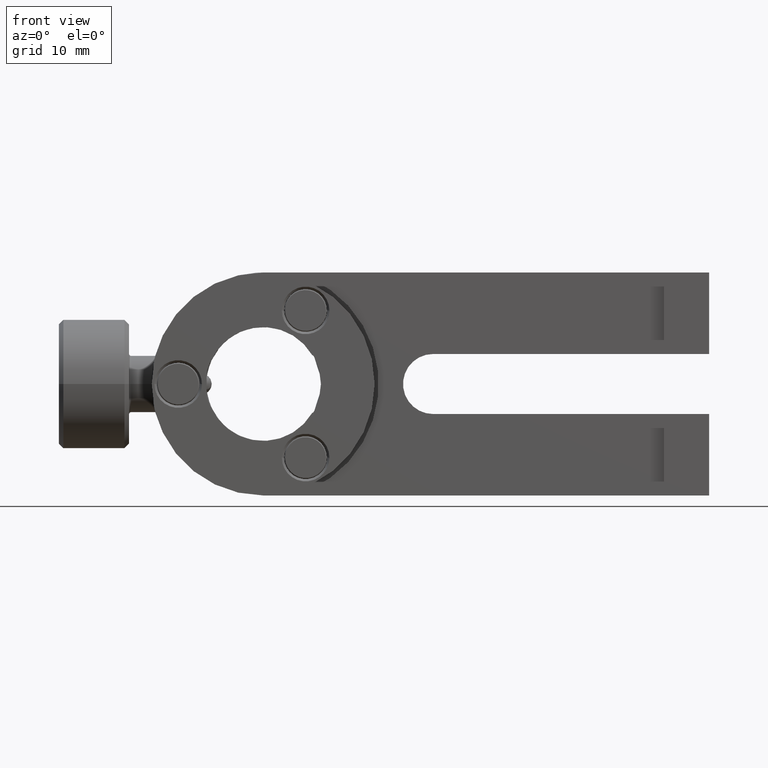
[diagram: clean part render]
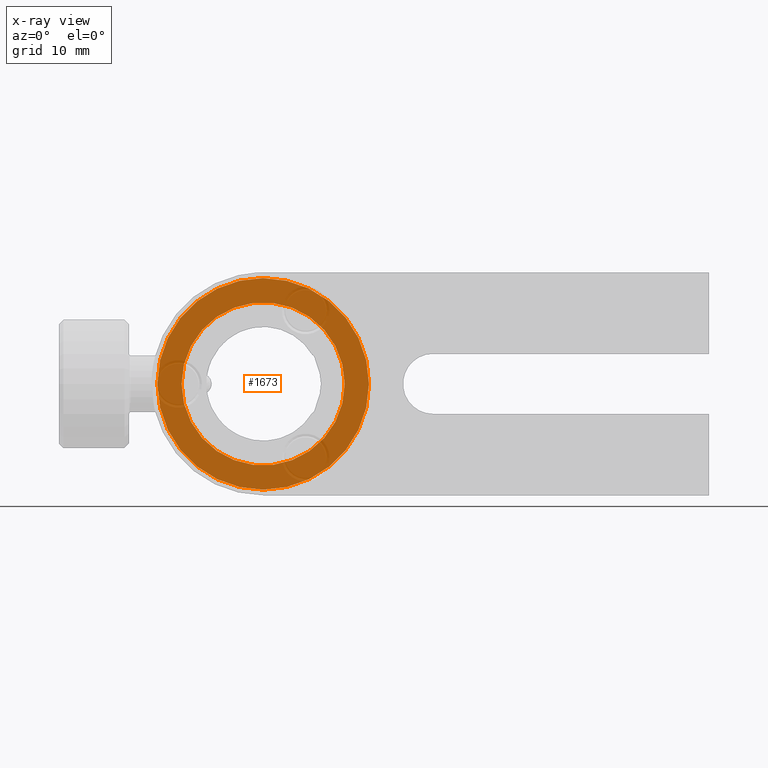
[diagram: x-ray — body ghosted, one internal face saturated and labeled with its STEP entity id]
A machine part, front view, then the same camera in x-ray: the body is ghosted and one INTERNAL B-rep face — a face not visible from any outside direction — is saturated and labeled: STEP entity #1673.
In plain terms, the highlighted planar face has unit normal (0, 1, 0).
Its self-contained STEP definition (entity closure, byte-faithful):
#2 = EDGE_LOOP ( 'NONE', ( #3193, #362 ) ) ;
#90 = DIRECTION ( 'NONE',  ( -1.000000000000000000, 7.312226963769446900E-017, -1.249000902703300900E-016 ) ) ;
#272 = CIRCLE ( 'NONE', #3384, 9.144000000000007200 ) ;
#273 = EDGE_CURVE ( 'NONE', #2815, #2203, #272, .T. ) ;
#362 = ORIENTED_EDGE ( 'NONE', *, *, #5764, .T. ) ;
#643 = DIRECTION ( 'NONE',  ( -6.084915702912036800E-017, -1.000000000000000000, -4.682008048750862200E-018 ) ) ;
#646 = CARTESIAN_POINT ( 'NONE',  ( 4.123066643891380800, 5.799734787764892400, -27.63438135623732000 ) ) ;
#729 = DIRECTION ( 'NONE',  ( -6.084915702912036800E-017, -1.000000000000000000, -4.682008048750862200E-018 ) ) ;
#944 = EDGE_CURVE ( 'NONE', #3037, #5100, #4708, .T. ) ;
#959 = ORIENTED_EDGE ( 'NONE', *, *, #6992, .T. ) ;
#1187 = PLANE ( 'NONE',  #3958 ) ;
#1673 = ADVANCED_FACE ( 'NONE', ( #1768, #3903 ), #1187, .F. ) ;
#1768 = FACE_BOUND ( 'NONE', #2838, .T. ) ;
#2034 = CARTESIAN_POINT ( 'NONE',  ( 4.123066643891379900, 5.799734787764892400, -1.904141803802402900E-015 ) ) ;
#2203 = VERTEX_POINT ( 'NONE', #6487 ) ;
#2815 = VERTEX_POINT ( 'NONE', #5019 ) ;
#2838 = EDGE_LOOP ( 'NONE', ( #7079, #959 ) ) ;
#2966 = CARTESIAN_POINT ( 'NONE',  ( -7.738733356108610000, 5.799734787764893300, -3.385681694571002800E-015 ) ) ;
#3037 = VERTEX_POINT ( 'NONE', #2966 ) ;
#3193 = ORIENTED_EDGE ( 'NONE', *, *, #944, .T. ) ;
#3384 = AXIS2_PLACEMENT_3D ( 'NONE', #4828, #5924, #3696 ) ;
#3696 = DIRECTION ( 'NONE',  ( -1.000000000000000000, 9.485583311334239900E-017, -1.249000902703301100E-016 ) ) ;
#3903 = FACE_OUTER_BOUND ( 'NONE', #2, .T. ) ;
#3958 = AXIS2_PLACEMENT_3D ( 'NONE', #646, #5770, #5266 ) ;
#4043 = CARTESIAN_POINT ( 'NONE',  ( 15.98486664389136700, 5.799734787764891500, 1.110074479268041100E-015 ) ) ;
#4217 = CARTESIAN_POINT ( 'NONE',  ( 4.123066643891379900, 5.799734787764892400, -1.904141803802402900E-015 ) ) ;
#4708 = CIRCLE ( 'NONE', #6218, 11.86179999999999000 ) ;
#4756 = DIRECTION ( 'NONE',  ( -1.000000000000000000, 9.485583311334239900E-017, -1.249000902703301100E-016 ) ) ;
#4797 = DIRECTION ( 'NONE',  ( 6.084915702912036800E-017, 1.000000000000000000, 4.682008048750862200E-018 ) ) ;
#4828 = CARTESIAN_POINT ( 'NONE',  ( 4.123066643891379900, 5.799734787764892400, -1.904141803802402900E-015 ) ) ;
#4979 = AXIS2_PLACEMENT_3D ( 'NONE', #5215, #643, #90 ) ;
#5019 = CARTESIAN_POINT ( 'NONE',  ( 13.26706664389139000, 5.799734787764891500, -7.620553783705033200E-016 ) ) ;
#5043 = CIRCLE ( 'NONE', #6940, 9.144000000000007200 ) ;
#5100 = VERTEX_POINT ( 'NONE', #4043 ) ;
#5215 = CARTESIAN_POINT ( 'NONE',  ( 4.123066643891379900, 5.799734787764892400, -1.904141803802402900E-015 ) ) ;
#5266 = DIRECTION ( 'NONE',  ( -1.000000000000000000, 6.084915702912035600E-017, -1.249000902703300900E-016 ) ) ;
#5764 = EDGE_CURVE ( 'NONE', #5100, #3037, #7221, .T. ) ;
#5770 = DIRECTION ( 'NONE',  ( 6.084915702912035600E-017, 1.000000000000000000, 4.682008048750862200E-018 ) ) ;
#5870 = DIRECTION ( 'NONE',  ( -1.000000000000000000, 7.312226963769446900E-017, -1.249000902703300900E-016 ) ) ;
#5924 = DIRECTION ( 'NONE',  ( 6.084915702912036800E-017, 1.000000000000000000, 4.682008048750862200E-018 ) ) ;
#6218 = AXIS2_PLACEMENT_3D ( 'NONE', #2034, #729, #5870 ) ;
#6487 = CARTESIAN_POINT ( 'NONE',  ( -5.020933356108628200, 5.799734787764893300, -1.926411196093961400E-015 ) ) ;
#6940 = AXIS2_PLACEMENT_3D ( 'NONE', #4217, #4797, #4756 ) ;
#6992 = EDGE_CURVE ( 'NONE', #2203, #2815, #5043, .T. ) ;
#7079 = ORIENTED_EDGE ( 'NONE', *, *, #273, .T. ) ;
#7221 = CIRCLE ( 'NONE', #4979, 11.86179999999999000 ) ;